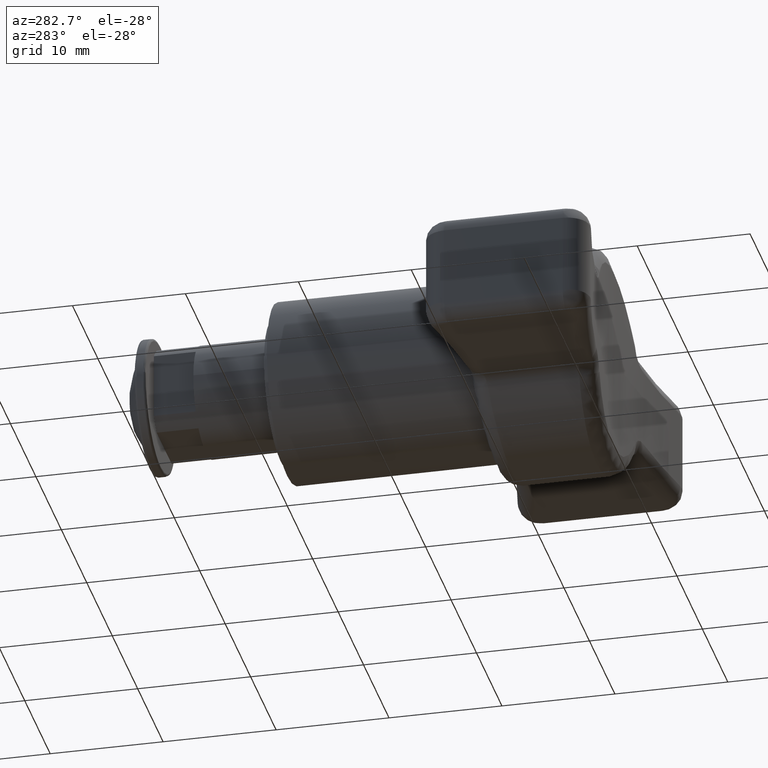
[diagram: clean part render]
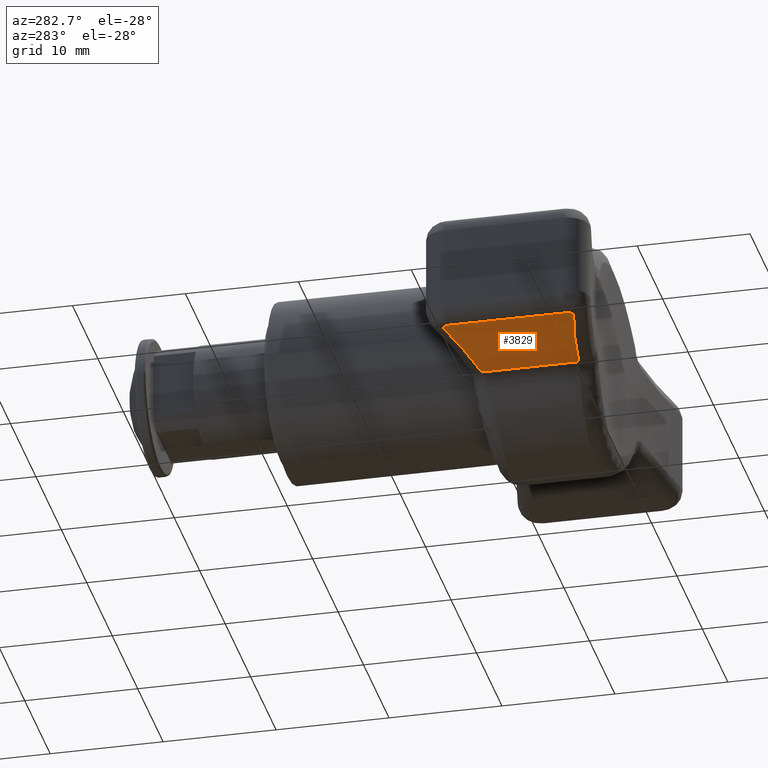
[diagram: same view with one face highlighted and labeled with its STEP entity id]
A machine part, auxiliary view. The second image highlights one B-rep face of the part: STEP entity #3829.
In plain terms, the highlighted face is a freeform B-spline surface patch.
Its self-contained STEP definition (entity closure, byte-faithful):
#2419=CARTESIAN_POINT('',(-9.486832817793779,-19.346636704832498,-5.000000237479300));
#2420=VERTEX_POINT('',#2419);
#2473=CARTESIAN_POINT('',(-17.890244851681651,-17.912862029050501,-5.000000237479300));
#2474=VERTEX_POINT('',#2473);
#2490=CARTESIAN_POINT('',(-17.890244851681651,-17.912862029050501,-5.000000237479300));
#2491=CARTESIAN_POINT('',(-13.726083196589009,-18.849798407781631,-5.000000237479300));
#2492=CARTESIAN_POINT('',(-9.486832817793811,-19.346636704832449,-5.000000237479300));
#2500=(BOUNDED_CURVE()B_SPLINE_CURVE(2,(#2490,#2491,#2492),.UNSPECIFIED.,.F.,.U.)CURVE()GEOMETRIC_REPRESENTATION_ITEM()QUASI_UNIFORM_CURVE()RATIONAL_B_SPLINE_CURVE((1.0,0.998631435135119,1.0))REPRESENTATION_ITEM(''));
#2501=EDGE_CURVE('',#2474,#2420,#2500,.T.);
#3668=CARTESIAN_POINT('',(-9.486832817793779,-27.954031693526950,-5.000000237479300));
#3669=VERTEX_POINT('',#3668);
#3670=CARTESIAN_POINT('',(-9.486832817793779,-19.346636704832498,-5.000000237479300));
#3671=CARTESIAN_POINT('',(-9.486832817793779,-27.954031693526950,-5.000000237479300));
#3672=QUASI_UNIFORM_CURVE('',1,(#3670,#3671),.UNSPECIFIED.,.F.,.U.);
#3673=EDGE_CURVE('',#2420,#3669,#3672,.T.);
#3747=CARTESIAN_POINT('',(-18.500000949949001,-18.400666906940351,-5.000000237479300));
#3748=VERTEX_POINT('',#3747);
#3764=CARTESIAN_POINT('',(-18.500000949949001,-18.400666906940351,-5.000000237479300));
#3765=CARTESIAN_POINT('',(-18.500000949948994,-18.160354482974242,-5.000000237479300));
#3766=CARTESIAN_POINT('',(-18.312348473443532,-18.010232501992689,-5.000000237479300));
#3767=CARTESIAN_POINT('',(-18.124695996938051,-17.860110521011130,-5.000000237479300));
#3768=CARTESIAN_POINT('',(-17.890244851681651,-17.912862029050508,-5.000000237479300));
#3776=(BOUNDED_CURVE()B_SPLINE_CURVE(2,(#3764,#3765,#3766,#3767,#3768),.UNSPECIFIED.,.F.,.U.)B_SPLINE_CURVE_WITH_KNOTS((3,2,3),(0.0,0.500000000000000,1.0),.UNSPECIFIED.)CURVE()GEOMETRIC_REPRESENTATION_ITEM()RATIONAL_B_SPLINE_CURVE((1.0,0.901303236150035,1.0,0.901303236150035,1.0))REPRESENTATION_ITEM(''));
#3777=EDGE_CURVE('',#3748,#2474,#3776,.T.);
#3782=CARTESIAN_POINT('',(-18.950207749979981,-29.974307275936759,-5.000000237479300));
#3783=CARTESIAN_POINT('',(-9.036624889586765,-29.974307275936759,-5.000000237479300));
#3784=CARTESIAN_POINT('',(-18.950207749979981,-17.326361702319769,-5.000000237479300));
#3785=CARTESIAN_POINT('',(-9.036624889586765,-17.326361702319769,-5.000000237479300));
#3786=B_SPLINE_SURFACE_WITH_KNOTS('',1,1,((#3782,#3784),(#3783,#3785)),.UNSPECIFIED.,.F.,.F.,.U.,(2,2),(2,2),(0.0,9.913582860393213),(0.0,12.647945573616990),.UNSPECIFIED.);
#3787=ORIENTED_EDGE('',*,*,#3777,.T.);
#3788=ORIENTED_EDGE('',*,*,#2501,.T.);
#3789=ORIENTED_EDGE('',*,*,#3673,.T.);
#3790=CARTESIAN_POINT('',(-17.890244851681651,-29.387806369309001,-5.000000237479300));
#3791=VERTEX_POINT('',#3790);
#3792=CARTESIAN_POINT('',(-9.486832817793790,-27.954031693526868,-5.000000237479300));
#3793=CARTESIAN_POINT('',(-13.726083196589192,-28.450869990577704,-5.000000237479300));
#3794=CARTESIAN_POINT('',(-17.890244851681679,-29.387806369308890,-5.000000237479300));
#3802=(BOUNDED_CURVE()B_SPLINE_CURVE(2,(#3792,#3793,#3794),.UNSPECIFIED.,.F.,.U.)CURVE()GEOMETRIC_REPRESENTATION_ITEM()QUASI_UNIFORM_CURVE()RATIONAL_B_SPLINE_CURVE((1.0,0.998631435135119,1.0))REPRESENTATION_ITEM(''));
#3803=EDGE_CURVE('',#3669,#3791,#3802,.T.);
#3804=ORIENTED_EDGE('',*,*,#3803,.T.);
#3805=CARTESIAN_POINT('',(-18.500000949949001,-28.900001491419150,-5.000000237479300));
#3806=VERTEX_POINT('',#3805);
#3807=CARTESIAN_POINT('',(-17.890244851681661,-29.387806369308951,-5.000000237479300));
#3808=CARTESIAN_POINT('',(-18.124695996938048,-29.440557877348322,-5.000000237479300));
#3809=CARTESIAN_POINT('',(-18.312348473443510,-29.290435896366780,-5.000000237479300));
#3810=CARTESIAN_POINT('',(-18.500000949949005,-29.140313915385224,-5.000000237479300));
#3811=CARTESIAN_POINT('',(-18.500000949949001,-28.900001491419101,-5.000000237479300));
#3819=(BOUNDED_CURVE()B_SPLINE_CURVE(2,(#3807,#3808,#3809,#3810,#3811),.UNSPECIFIED.,.F.,.U.)B_SPLINE_CURVE_WITH_KNOTS((3,2,3),(0.0,0.500000000000000,1.0),.UNSPECIFIED.)CURVE()GEOMETRIC_REPRESENTATION_ITEM()RATIONAL_B_SPLINE_CURVE((1.0,0.901303236150047,1.0,0.901303236150047,1.0))REPRESENTATION_ITEM(''));
#3820=EDGE_CURVE('',#3791,#3806,#3819,.T.);
#3821=ORIENTED_EDGE('',*,*,#3820,.T.);
#3822=CARTESIAN_POINT('',(-18.500000949949001,-28.900001491419150,-5.000000237479300));
#3823=CARTESIAN_POINT('',(-18.500000949949001,-18.400666906940351,-5.000000237479300));
#3824=QUASI_UNIFORM_CURVE('',1,(#3822,#3823),.UNSPECIFIED.,.F.,.U.);
#3825=EDGE_CURVE('',#3806,#3748,#3824,.T.);
#3826=ORIENTED_EDGE('',*,*,#3825,.T.);
#3827=EDGE_LOOP('',(#3787,#3788,#3789,#3804,#3821,#3826));
#3828=FACE_OUTER_BOUND('',#3827,.T.);
#3829=ADVANCED_FACE('',(#3828),#3786,.F.);